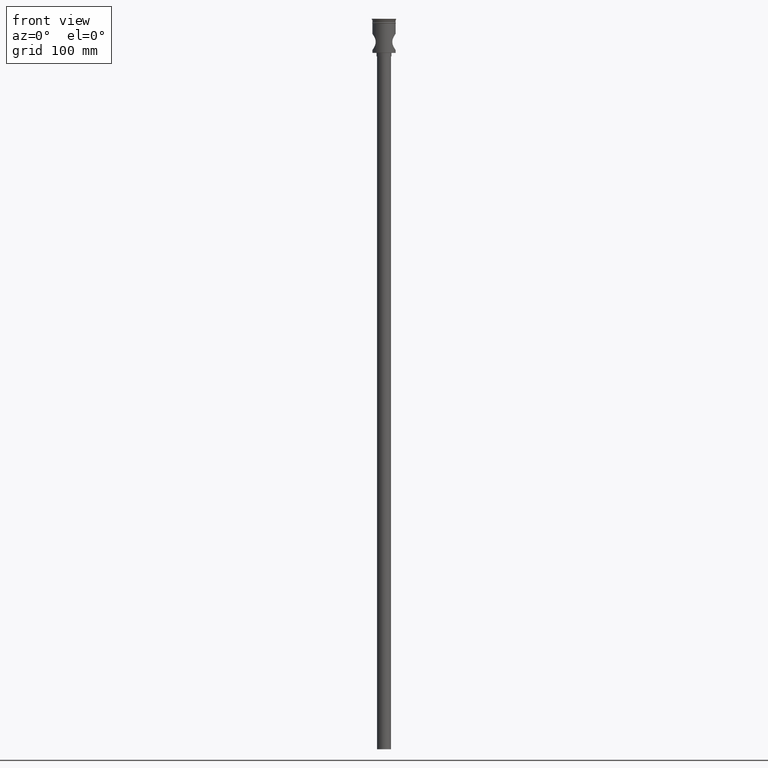
[diagram: clean part render]
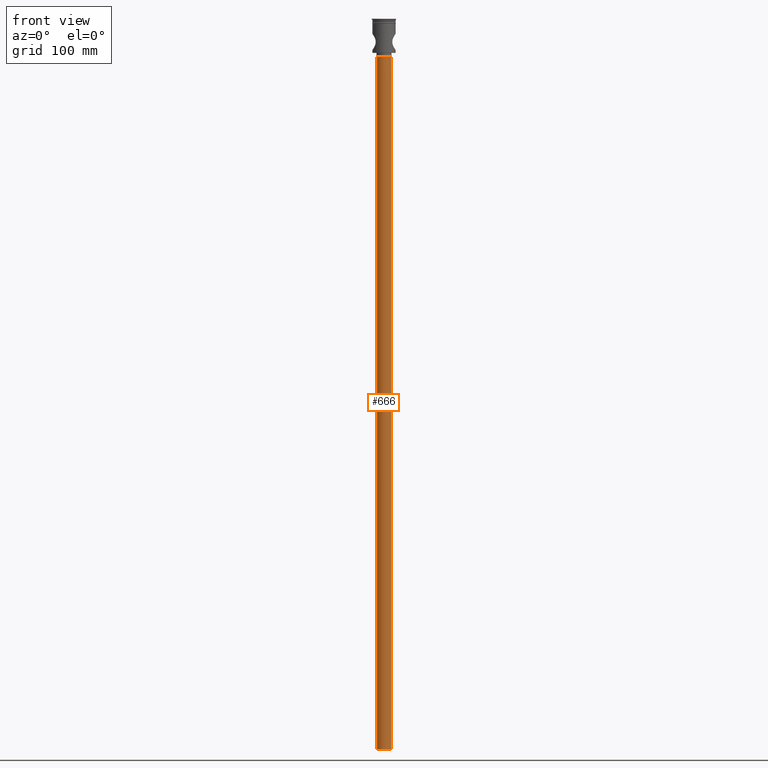
[diagram: same view with one face highlighted and labeled with its STEP entity id]
A machine part, front view. The second image highlights one B-rep face of the part: STEP entity #666.
In plain terms, the highlighted cylindrical surface (edge-blend (fillet) strip) has radius 6 mm, axis along (-0, -0, 1).
Its self-contained STEP definition (entity closure, byte-faithful):
#38 = ORIENTED_EDGE ( 'NONE', *, *, #769, .T. ) ;
#109 = LINE ( 'NONE', #201, #825 ) ;
#137 = VERTEX_POINT ( 'NONE', #614 ) ;
#201 = CARTESIAN_POINT ( 'NONE',  ( 6.000000000000000888, 0.000000000000000000, -629.5000000000000000 ) ) ;
#211 = LINE ( 'NONE', #1243, #1310 ) ;
#229 = EDGE_LOOP ( 'NONE', ( #361, #1424, #348, #38 ) ) ;
#247 = CARTESIAN_POINT ( 'NONE',  ( -6.000000000000000888, 7.347880794884120722E-16, -32.50000000000000000 ) ) ;
#273 = CIRCLE ( 'NONE', #451, 6.000000000000000888 ) ;
#348 = ORIENTED_EDGE ( 'NONE', *, *, #1498, .T. ) ;
#361 = ORIENTED_EDGE ( 'NONE', *, *, #676, .F. ) ;
#451 = AXIS2_PLACEMENT_3D ( 'NONE', #1052, #835, #595 ) ;
#552 = CARTESIAN_POINT ( 'NONE',  ( 0.000000000000000000, 0.000000000000000000, -629.5000000000000000 ) ) ;
#595 = DIRECTION ( 'NONE',  ( -1.000000000000000000, 0.000000000000000000, 0.000000000000000000 ) ) ;
#603 = DIRECTION ( 'NONE',  ( -1.000000000000000000, 0.000000000000000000, 0.000000000000000000 ) ) ;
#614 = CARTESIAN_POINT ( 'NONE',  ( 6.000000000000000888, 0.000000000000000000, -629.5000000000000000 ) ) ;
#666 = ADVANCED_FACE ( 'NONE', ( #901 ), #1507, .T. ) ;
#676 = EDGE_CURVE ( 'NONE', #1023, #1275, #211, .T. ) ;
#680 = DIRECTION ( 'NONE',  ( -0.000000000000000000, -0.000000000000000000, 1.000000000000000000 ) ) ;
#769 = EDGE_CURVE ( 'NONE', #911, #1275, #273, .T. ) ;
#795 = AXIS2_PLACEMENT_3D ( 'NONE', #841, #1078, #603 ) ;
#825 = VECTOR ( 'NONE', #680, 1000.000000000000000 ) ;
#835 = DIRECTION ( 'NONE',  ( 0.000000000000000000, 0.000000000000000000, -1.000000000000000000 ) ) ;
#841 = CARTESIAN_POINT ( 'NONE',  ( 0.000000000000000000, 0.000000000000000000, -629.5000000000000000 ) ) ;
#894 = EDGE_CURVE ( 'NONE', #137, #1023, #1135, .T. ) ;
#901 = FACE_OUTER_BOUND ( 'NONE', #229, .T. ) ;
#911 = VERTEX_POINT ( 'NONE', #1308 ) ;
#1017 = DIRECTION ( 'NONE',  ( -0.000000000000000000, -0.000000000000000000, 1.000000000000000000 ) ) ;
#1023 = VERTEX_POINT ( 'NONE', #1321 ) ;
#1052 = CARTESIAN_POINT ( 'NONE',  ( 0.000000000000000000, 0.000000000000000000, -32.50000000000000000 ) ) ;
#1078 = DIRECTION ( 'NONE',  ( 0.000000000000000000, 0.000000000000000000, -1.000000000000000000 ) ) ;
#1106 = AXIS2_PLACEMENT_3D ( 'NONE', #552, #1017, #1378 ) ;
#1135 = CIRCLE ( 'NONE', #795, 6.000000000000000888 ) ;
#1137 = DIRECTION ( 'NONE',  ( -0.000000000000000000, -0.000000000000000000, 1.000000000000000000 ) ) ;
#1243 = CARTESIAN_POINT ( 'NONE',  ( -6.000000000000000888, 7.347880794884120722E-16, -629.5000000000000000 ) ) ;
#1275 = VERTEX_POINT ( 'NONE', #247 ) ;
#1308 = CARTESIAN_POINT ( 'NONE',  ( 6.000000000000000888, 0.000000000000000000, -32.50000000000000000 ) ) ;
#1310 = VECTOR ( 'NONE', #1137, 1000.000000000000000 ) ;
#1321 = CARTESIAN_POINT ( 'NONE',  ( -6.000000000000000888, 7.347880794884120722E-16, -629.5000000000000000 ) ) ;
#1378 = DIRECTION ( 'NONE',  ( 1.000000000000000000, 0.000000000000000000, 0.000000000000000000 ) ) ;
#1424 = ORIENTED_EDGE ( 'NONE', *, *, #894, .F. ) ;
#1498 = EDGE_CURVE ( 'NONE', #137, #911, #109, .T. ) ;
#1507 = CYLINDRICAL_SURFACE ( 'NONE', #1106, 6.000000000000000888 ) ;